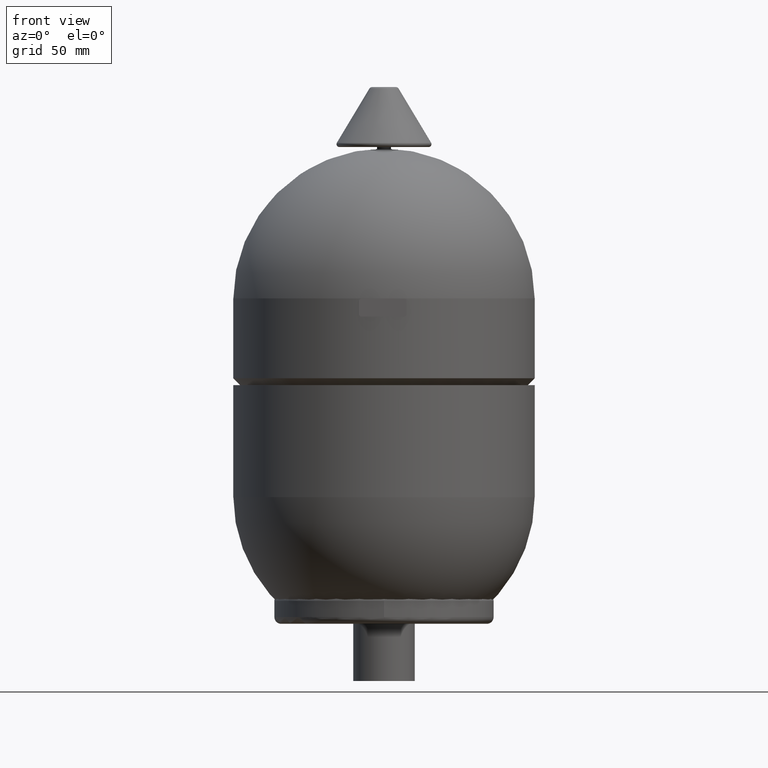
[diagram: clean part render]
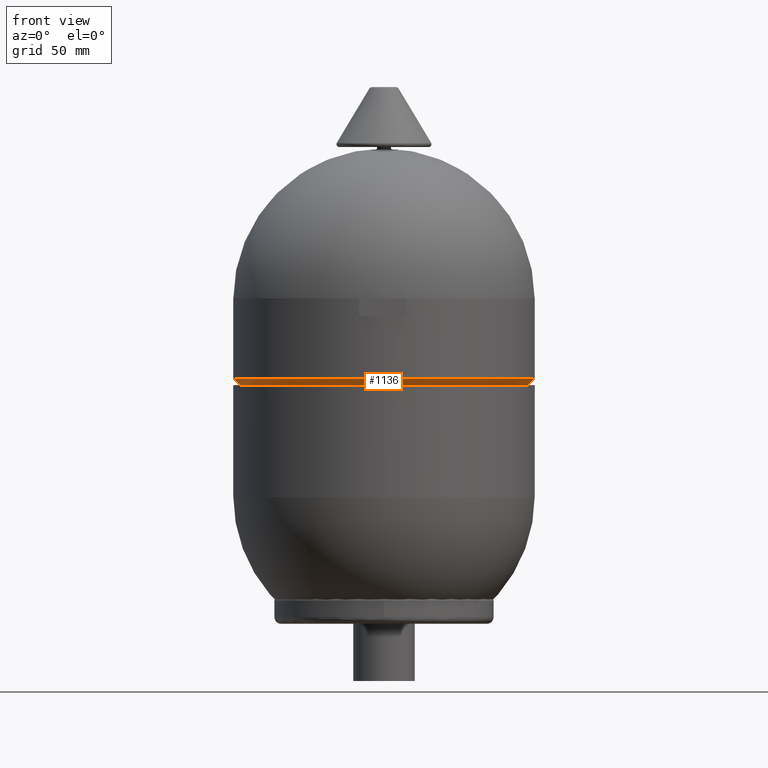
[diagram: same view with one face highlighted and labeled with its STEP entity id]
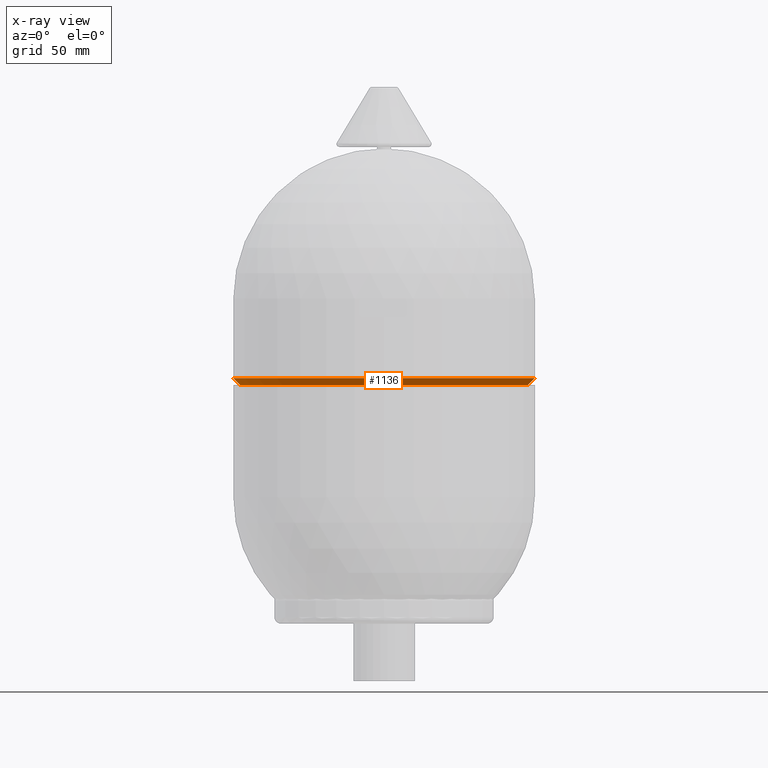
[diagram: x-ray of the same camera — body ghosted, the highlighted face saturated]
A machine part, front view. The second image highlights one B-rep face of the part: STEP entity #1136.
The next image is the same camera in x-ray: the body ghosted, the highlighted face saturated — about 0% of this face is hidden behind the body in this view.
In plain terms, the highlighted conical surface has half-angle 45 deg.
Its self-contained STEP definition (entity closure, byte-faithful):
#1070=CARTESIAN_POINT('',(65.999999999999972,0.0,132.500000000000000));
#1071=VERTEX_POINT('',#1070);
#1087=CARTESIAN_POINT('',(-65.999999999999957,-8.082402E-015,132.500000000000000));
#1088=VERTEX_POINT('',#1087);
#1095=CARTESIAN_POINT('',(0.0,0.0,132.500000000000000));
#1096=DIRECTION('',(0.0,0.0,1.0));
#1097=DIRECTION('',(1.0,0.0,0.0));
#1098=AXIS2_PLACEMENT_3D('',#1095,#1096,#1097);
#1099=CIRCLE('',#1098,65.999999999999972);
#1100=EDGE_CURVE('',#1088,#1071,#1099,.T.);
#1105=CARTESIAN_POINT('',(0.0,0.0,131.0));
#1106=DIRECTION('',(0.0,0.0,1.0));
#1107=DIRECTION('',(1.0,0.0,0.0));
#1108=AXIS2_PLACEMENT_3D('',#1105,#1106,#1107);
#1109=CONICAL_SURFACE('',#1108,64.499999999999972,44.999999999999659);
#1110=CARTESIAN_POINT('',(62.999999999999986,0.0,129.499999999999970));
#1111=VERTEX_POINT('',#1110);
#1112=CARTESIAN_POINT('',(65.999999999999972,0.0,132.500000000000000));
#1113=DIRECTION('',(-0.707106781186542,0.0,-0.707106781186552));
#1114=VECTOR('',#1113,4.242640687119295);
#1115=LINE('',#1112,#1114);
#1116=EDGE_CURVE('',#1071,#1111,#1115,.T.);
#1117=ORIENTED_EDGE('',*,*,#1116,.F.);
#1118=ORIENTED_EDGE('',*,*,#1100,.F.);
#1119=CARTESIAN_POINT('',(-62.999999999999972,-7.715020E-015,129.499999999999970));
#1120=VERTEX_POINT('',#1119);
#1121=CARTESIAN_POINT('',(-65.999999999999957,-8.082402E-015,132.500000000000000));
#1122=DIRECTION('',(0.707106781186542,8.659275E-017,-0.707106781186552));
#1123=VECTOR('',#1122,4.242640687119295);
#1124=LINE('',#1121,#1123);
#1125=EDGE_CURVE('',#1088,#1120,#1124,.T.);
#1126=ORIENTED_EDGE('',*,*,#1125,.T.);
#1127=CARTESIAN_POINT('',(0.0,0.0,129.499999999999970));
#1128=DIRECTION('',(0.0,0.0,1.0));
#1129=DIRECTION('',(1.0,0.0,0.0));
#1130=AXIS2_PLACEMENT_3D('',#1127,#1128,#1129);
#1131=CIRCLE('',#1130,62.999999999999986);
#1132=EDGE_CURVE('',#1120,#1111,#1131,.T.);
#1133=ORIENTED_EDGE('',*,*,#1132,.T.);
#1134=EDGE_LOOP('',(#1117,#1118,#1126,#1133));
#1135=FACE_OUTER_BOUND('',#1134,.T.);
#1136=ADVANCED_FACE('',(#1135),#1109,.T.);